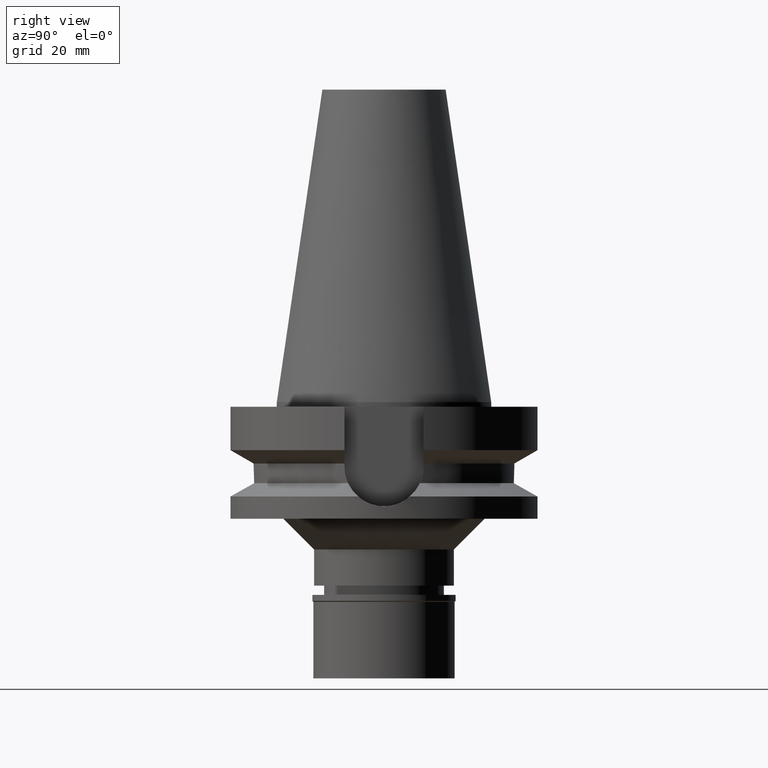
[diagram: clean part render]
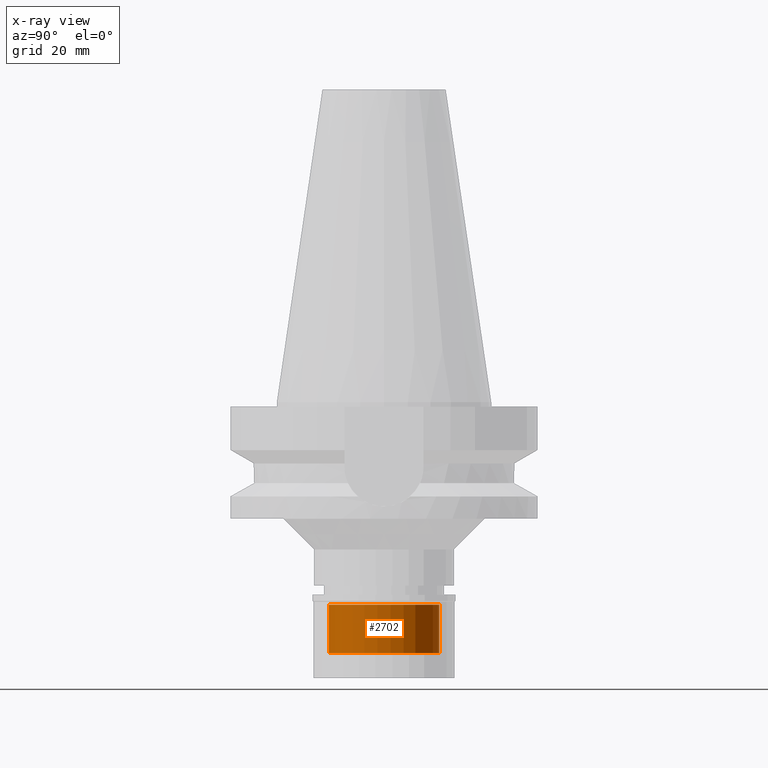
[diagram: x-ray — body ghosted, one internal face saturated and labeled with its STEP entity id]
A machine part, right view, then the same camera in x-ray: the body is ghosted and one INTERNAL B-rep face — a face not visible from any outside direction — is saturated and labeled: STEP entity #2702.
In plain terms, the highlighted cylindrical surface (partial cylindrical patch) has radius 18 mm, axis along (0, 0, -1).
Its self-contained STEP definition (entity closure, byte-faithful):
#25 = DIRECTION ( 'NONE',  ( 0.0000000000000000000, 1.000000000000000000, 0.0000000000000000000 ) ) ;
#69 = AXIS2_PLACEMENT_3D ( 'NONE', #1072, #89, #503 ) ;
#89 = DIRECTION ( 'NONE',  ( 0.0000000000000000000, 0.0000000000000000000, 1.000000000000000000 ) ) ;
#132 = VERTEX_POINT ( 'NONE', #252 ) ;
#244 = DIRECTION ( 'NONE',  ( 0.0000000000000000000, 0.0000000000000000000, 1.000000000000000000 ) ) ;
#252 = CARTESIAN_POINT ( 'NONE',  ( 0.0000000000000000000, 18.00000000000000000, -3.200000000000000178 ) ) ;
#402 = VERTEX_POINT ( 'NONE', #1998 ) ;
#460 = DIRECTION ( 'NONE',  ( 0.0000000000000000000, -1.000000000000000000, 0.0000000000000000000 ) ) ;
#473 = CARTESIAN_POINT ( 'NONE',  ( 0.0000000000000000000, 18.00000000000000000, -19.00000000000000000 ) ) ;
#503 = DIRECTION ( 'NONE',  ( 0.0000000000000000000, -1.000000000000000000, 0.0000000000000000000 ) ) ;
#604 = ORIENTED_EDGE ( 'NONE', *, *, #1323, .T. ) ;
#629 = CIRCLE ( 'NONE', #69, 18.00000000000000000 ) ;
#699 = CARTESIAN_POINT ( 'NONE',  ( 0.0000000000000000000, 0.0000000000000000000, 0.0000000000000000000 ) ) ;
#853 = ORIENTED_EDGE ( 'NONE', *, *, #1209, .T. ) ;
#877 = VECTOR ( 'NONE', #1207, 1000.000000000000000 ) ;
#944 = CARTESIAN_POINT ( 'NONE',  ( 0.0000000000000000000, 18.00000000000000000, -19.00000000000000000 ) ) ;
#1072 = CARTESIAN_POINT ( 'NONE',  ( 0.0000000000000000000, 0.0000000000000000000, -3.200000000000000178 ) ) ;
#1207 = DIRECTION ( 'NONE',  ( 0.0000000000000000000, 0.0000000000000000000, 1.000000000000000000 ) ) ;
#1209 = EDGE_CURVE ( 'NONE', #402, #1644, #2865, .T. ) ;
#1310 = EDGE_CURVE ( 'NONE', #2889, #132, #2615, .T. ) ;
#1323 = EDGE_CURVE ( 'NONE', #1644, #132, #629, .T. ) ;
#1478 = ORIENTED_EDGE ( 'NONE', *, *, #1722, .T. ) ;
#1644 = VERTEX_POINT ( 'NONE', #1839 ) ;
#1648 = DIRECTION ( 'NONE',  ( 0.0000000000000000000, 0.0000000000000000000, -1.000000000000000000 ) ) ;
#1722 = EDGE_CURVE ( 'NONE', #2889, #402, #2004, .T. ) ;
#1839 = CARTESIAN_POINT ( 'NONE',  ( 0.0000000000000000000, -18.00000000000000000, -3.200000000000000178 ) ) ;
#1998 = CARTESIAN_POINT ( 'NONE',  ( 0.0000000000000000000, -18.00000000000000000, -19.00000000000000000 ) ) ;
#2004 = CIRCLE ( 'NONE', #3047, 18.00000000000000000 ) ;
#2102 = CYLINDRICAL_SURFACE ( 'NONE', #2871, 18.00000000000000000 ) ;
#2152 = EDGE_LOOP ( 'NONE', ( #1478, #853, #604, #2541 ) ) ;
#2377 = CARTESIAN_POINT ( 'NONE',  ( 0.0000000000000000000, 0.0000000000000000000, -19.00000000000000000 ) ) ;
#2419 = VECTOR ( 'NONE', #244, 1000.000000000000000 ) ;
#2541 = ORIENTED_EDGE ( 'NONE', *, *, #1310, .F. ) ;
#2603 = FACE_OUTER_BOUND ( 'NONE', #2152, .T. ) ;
#2615 = LINE ( 'NONE', #473, #877 ) ;
#2623 = CARTESIAN_POINT ( 'NONE',  ( 0.0000000000000000000, -18.00000000000000000, -19.00000000000000000 ) ) ;
#2702 = ADVANCED_FACE ( 'NONE', ( #2603 ), #2102, .F. ) ;
#2865 = LINE ( 'NONE', #2623, #2419 ) ;
#2871 = AXIS2_PLACEMENT_3D ( 'NONE', #699, #1648, #460 ) ;
#2875 = DIRECTION ( 'NONE',  ( 0.0000000000000000000, 0.0000000000000000000, -1.000000000000000000 ) ) ;
#2889 = VERTEX_POINT ( 'NONE', #944 ) ;
#3047 = AXIS2_PLACEMENT_3D ( 'NONE', #2377, #2875, #25 ) ;